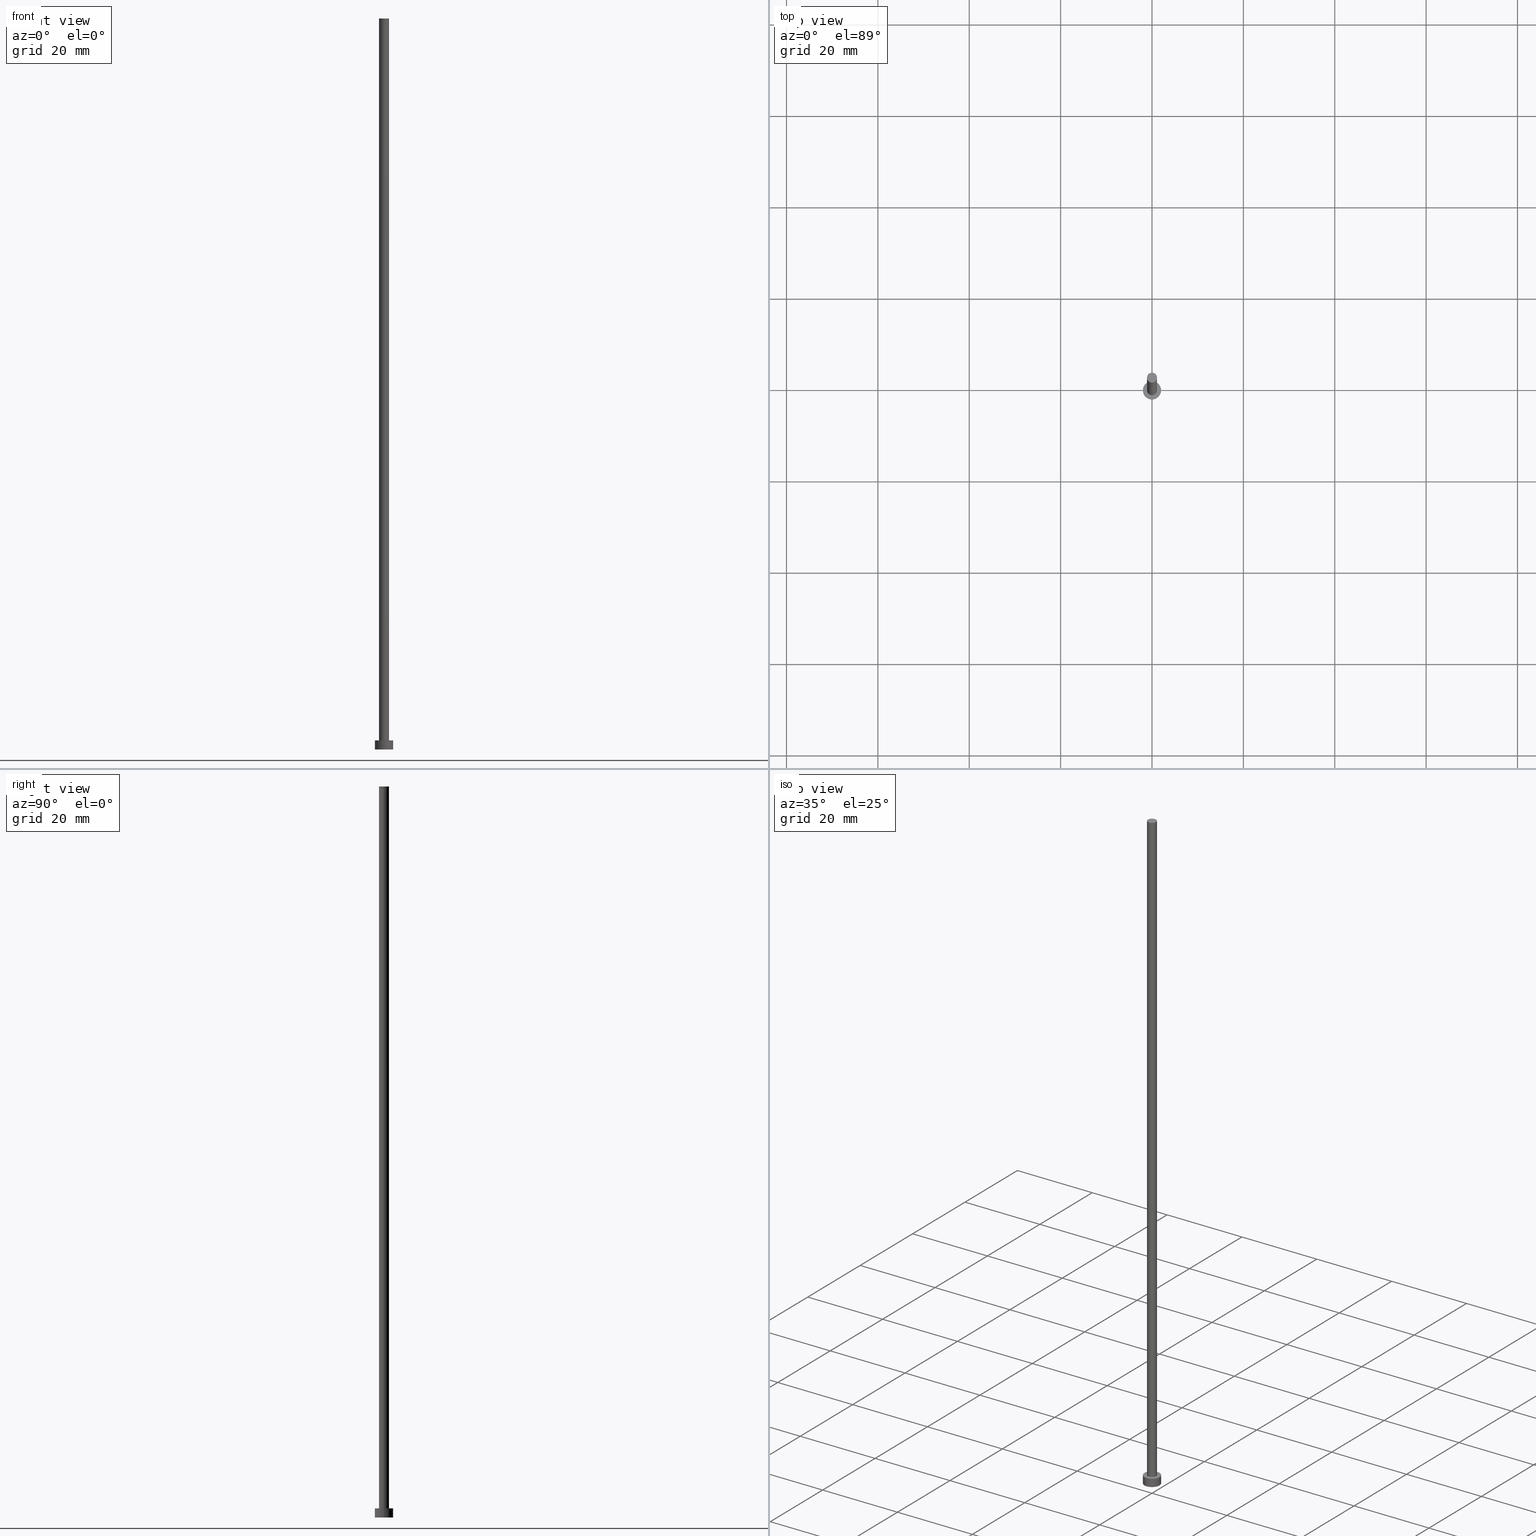
[diagram: canonical four-view strip — front | top / right | iso, engineering-drawing reading convention]
A machine part, canonical four-view strip (front | top / right | iso — engineering-drawing reading convention). The complete STEP part file that produces these views, byte-faithful:
ISO-10303-21;
HEADER;
FILE_DESCRIPTION (( 'STEP AP203' ),
    '1' );
FILE_NAME ('5828.STEP',
    '2023-02-13T16:42:11',
    ( '' ),
    ( '' ),
    'SwSTEP 2.0',
    'SolidWorks 2019',
    '' );
FILE_SCHEMA (( 'CONFIG_CONTROL_DESIGN' ));
ENDSEC;

DATA;
#1 = ORIENTED_EDGE ( 'NONE', *, *, #153, .T. ) ;
#2 = EDGE_CURVE ( 'NONE', #178, #24, #165, .T. ) ;
#3 = DATE_TIME_ROLE ( 'classification_date' ) ;
#4 = ORIENTED_EDGE ( 'NONE', *, *, #163, .T. ) ;
#5 = APPROVAL_STATUS ( 'not_yet_approved' ) ;
#6 = ORIENTED_EDGE ( 'NONE', *, *, #187, .F. ) ;
#7 = PERSON_AND_ORGANIZATION ( #162, #191 ) ;
#8 = PRODUCT_DEFINITION_FORMATION_WITH_SPECIFIED_SOURCE ( 'LIBOVOLN�', '', #54, .NOT_KNOWN. ) ;
#9 = CYLINDRICAL_SURFACE ( 'NONE', #32, 2.000000000000000000 ) ;
#10 = DIRECTION ( 'NONE',  ( 1.000000000000000000, 0.000000000000000000, -0.000000000000000000 ) ) ;
#11 = DIRECTION ( 'NONE',  ( 0.000000000000000000, 0.000000000000000000, 1.000000000000000000 ) ) ;
#12 = CARTESIAN_POINT ( 'NONE',  ( 0.000000000000000000, 0.000000000000000000, 160.0000000000000000 ) ) ;
#13 = ADVANCED_FACE ( 'NONE', ( #105, #125 ), #183, .T. ) ;
#14 = CARTESIAN_POINT ( 'NONE',  ( 0.000000000000000000, 0.000000000000000000, 2.000000000000000000 ) ) ;
#15 = FACE_OUTER_BOUND ( 'NONE', #77, .T. ) ;
#16 =( NAMED_UNIT ( * ) PLANE_ANGLE_UNIT ( ) SI_UNIT ( $, .RADIAN. ) );
#17 = APPROVAL_PERSON_ORGANIZATION ( #175, #73, #74 ) ;
#18 = CARTESIAN_POINT ( 'NONE',  ( 2.000000000000000000, 2.449293598294706414E-16, 2.000000000000000000 ) ) ;
#19 = PERSON_AND_ORGANIZATION ( #162, #191 ) ;
#20 = EDGE_LOOP ( 'NONE', ( #136, #233 ) ) ;
#21 = ADVANCED_FACE ( 'NONE', ( #30 ), #9, .T. ) ;
#22 = ORIENTED_EDGE ( 'NONE', *, *, #2, .F. ) ;
#23 = ADVANCED_FACE ( 'NONE', ( #164 ), #241, .T. ) ;
#24 = VERTEX_POINT ( 'NONE', #104 ) ;
#25 = UNCERTAINTY_MEASURE_WITH_UNIT (LENGTH_MEASURE( 1.000000000000000082E-05 ), #252, 'distance_accuracy_value', 'NONE');
#26 = CARTESIAN_POINT ( 'NONE',  ( 0.000000000000000000, 0.000000000000000000, 160.0000000000000000 ) ) ;
#27 = DIRECTION ( 'NONE',  ( 1.000000000000000000, 0.000000000000000000, 0.000000000000000000 ) ) ;
#28 = EDGE_CURVE ( 'NONE', #255, #41, #177, .T. ) ;
#29 = LOCAL_TIME ( 17, 42, 11.00000000000000000, #40 ) ;
#30 = FACE_OUTER_BOUND ( 'NONE', #236, .T. ) ;
#31 = CARTESIAN_POINT ( 'NONE',  ( -1.100000000000000089, 0.000000000000000000, 2.000000000000000000 ) ) ;
#32 = AXIS2_PLACEMENT_3D ( 'NONE', #188, #83, #218 ) ;
#33 = ORIENTED_EDGE ( 'NONE', *, *, #214, .F. ) ;
#34 = DIRECTION ( 'NONE',  ( -0.000000000000000000, -0.000000000000000000, -1.000000000000000000 ) ) ;
#35 = CARTESIAN_POINT ( 'NONE',  ( 0.000000000000000000, 0.000000000000000000, 0.000000000000000000 ) ) ;
#36 = DIRECTION ( 'NONE',  ( 1.000000000000000000, 0.000000000000000000, 0.000000000000000000 ) ) ;
#37 = PERSON_AND_ORGANIZATION ( #162, #191 ) ;
#38 = ORIENTED_EDGE ( 'NONE', *, *, #39, .T. ) ;
#39 = EDGE_CURVE ( 'NONE', #41, #64, #66, .T. ) ;
#40 = COORDINATED_UNIVERSAL_TIME_OFFSET ( 1, 0, .AHEAD. ) ;
#41 = VERTEX_POINT ( 'NONE', #86 ) ;
#42 = EDGE_LOOP ( 'NONE', ( #133, #212 ) ) ;
#43 = DIRECTION ( 'NONE',  ( 0.000000000000000000, 0.000000000000000000, 1.000000000000000000 ) ) ;
#44 = DIRECTION ( 'NONE',  ( -1.000000000000000000, 0.000000000000000000, 0.000000000000000000 ) ) ;
#45 = CARTESIAN_POINT ( 'NONE',  ( 2.000000000000000000, 2.449293598294706414E-16, 2.000000000000000000 ) ) ;
#46 = CARTESIAN_POINT ( 'NONE',  ( -2.000000000000000000, 0.000000000000000000, 0.000000000000000000 ) ) ;
#47 = AXIS2_PLACEMENT_3D ( 'NONE', #223, #200, #27 ) ;
#48 = DATE_AND_TIME ( #224, #174 ) ;
#49 = CARTESIAN_POINT ( 'NONE',  ( 2.000000000000000000, 2.449293598294706414E-16, 0.000000000000000000 ) ) ;
#50 = APPLICATION_PROTOCOL_DEFINITION ( 'international standard', 'config_control_design', 1994, #135 ) ;
#51 = AXIS2_PLACEMENT_3D ( 'NONE', #167, #69, #245 ) ;
#52 = DIRECTION ( 'NONE',  ( 1.000000000000000000, 0.000000000000000000, 0.000000000000000000 ) ) ;
#53 = LOCAL_TIME ( 17, 42, 11.00000000000000000, #173 ) ;
#54 = PRODUCT ( '5828', '5828', '', ( #170 ) ) ;
#55 = ADVANCED_FACE ( 'NONE', ( #220 ), #61, .T. ) ;
#56 = PERSON_AND_ORGANIZATION_ROLE ( 'classification_officer' ) ;
#57 = AXIS2_PLACEMENT_3D ( 'NONE', #12, #43, #217 ) ;
#58 = CALENDAR_DATE ( 2023, 13, 2 ) ;
#59 = ORIENTED_EDGE ( 'NONE', *, *, #39, .F. ) ;
#60 = PRODUCT_RELATED_PRODUCT_CATEGORY ( 'detail', '', ( #54 ) ) ;
#61 = CYLINDRICAL_SURFACE ( 'NONE', #206, 1.100000000000000089 ) ;
#62 = PERSON_AND_ORGANIZATION_ROLE ( 'design_supplier' ) ;
#63 = AXIS2_PLACEMENT_3D ( 'NONE', #14, #211, #90 ) ;
#64 = VERTEX_POINT ( 'NONE', #31 ) ;
#65 = CALENDAR_DATE ( 2023, 13, 2 ) ;
#66 = LINE ( 'NONE', #148, #158 ) ;
#67 = CARTESIAN_POINT ( 'NONE',  ( 0.000000000000000000, 0.000000000000000000, 2.000000000000000000 ) ) ;
#68 = CC_DESIGN_PERSON_AND_ORGANIZATION_ASSIGNMENT ( #7, #62, ( #8 ) ) ;
#69 = DIRECTION ( 'NONE',  ( 0.000000000000000000, 0.000000000000000000, 1.000000000000000000 ) ) ;
#70 = CARTESIAN_POINT ( 'NONE',  ( 0.000000000000000000, 0.000000000000000000, 2.000000000000000000 ) ) ;
#71 = DATE_AND_TIME ( #229, #53 ) ;
#72 = APPROVAL_PERSON_ORGANIZATION ( #181, #244, #232 ) ;
#73 = APPROVAL ( #159, 'NEUR�EN�' ) ;
#74 = APPROVAL_ROLE ( '' ) ;
#75 = AXIS2_PLACEMENT_3D ( 'NONE', #205, #11, #161 ) ;
#76 = ORIENTED_EDGE ( 'NONE', *, *, #187, .T. ) ;
#77 = EDGE_LOOP ( 'NONE', ( #216, #4, #239, #59 ) ) ;
#78 = CC_DESIGN_DATE_AND_TIME_ASSIGNMENT ( #48, #79, ( #123 ) ) ;
#79 = DATE_TIME_ROLE ( 'creation_date' ) ;
#80 = PERSON_AND_ORGANIZATION_ROLE ( 'creator' ) ;
#81 = PLANE ( 'NONE',  #238 ) ;
#82 = VECTOR ( 'NONE', #225, 1000.000000000000000 ) ;
#83 = DIRECTION ( 'NONE',  ( -0.000000000000000000, -0.000000000000000000, -1.000000000000000000 ) ) ;
#84 = DIRECTION ( 'NONE',  ( -0.000000000000000000, -0.000000000000000000, -1.000000000000000000 ) ) ;
#85 = DIRECTION ( 'NONE',  ( -0.000000000000000000, -0.000000000000000000, -1.000000000000000000 ) ) ;
#86 = CARTESIAN_POINT ( 'NONE',  ( -1.100000000000000089, 0.000000000000000000, 160.0000000000000000 ) ) ;
#87 = CC_DESIGN_PERSON_AND_ORGANIZATION_ASSIGNMENT ( #197, #56, ( #124 ) ) ;
#88 = CC_DESIGN_APPROVAL ( #244, ( #8 ) ) ;
#89 = CARTESIAN_POINT ( 'NONE',  ( 0.000000000000000000, 0.000000000000000000, 160.0000000000000000 ) ) ;
#90 = DIRECTION ( 'NONE',  ( 1.000000000000000000, 0.000000000000000000, 0.000000000000000000 ) ) ;
#91 = ADVANCED_FACE ( 'NONE', ( #121 ), #81, .F. ) ;
#92 = PERSON_AND_ORGANIZATION_ROLE ( 'creator' ) ;
#93 = EDGE_LOOP ( 'NONE', ( #195, #213, #38, #1 ) ) ;
#94 = LOCAL_TIME ( 17, 42, 11.00000000000000000, #240 ) ;
#95 = ORIENTED_EDGE ( 'NONE', *, *, #149, .F. ) ;
#96 = CALENDAR_DATE ( 2023, 13, 2 ) ;
#97 = AXIS2_PLACEMENT_3D ( 'NONE', #67, #117, #10 ) ;
#98 = DIRECTION ( 'NONE',  ( 1.000000000000000000, 0.000000000000000000, -0.000000000000000000 ) ) ;
#99 = DESIGN_CONTEXT ( 'detailed design', #135, 'design' ) ;
#100 = ORIENTED_EDGE ( 'NONE', *, *, #149, .T. ) ;
#101 = CC_DESIGN_APPROVAL ( #73, ( #124 ) ) ;
#102 = DIRECTION ( 'NONE',  ( -0.000000000000000000, -0.000000000000000000, -1.000000000000000000 ) ) ;
#103 = ADVANCED_FACE ( 'NONE', ( #182 ), #118, .T. ) ;
#104 = CARTESIAN_POINT ( 'NONE',  ( -2.000000000000000000, 0.000000000000000000, 2.000000000000000000 ) ) ;
#105 = FACE_BOUND ( 'NONE', #137, .T. ) ;
#106 = DIRECTION ( 'NONE',  ( -0.000000000000000000, -0.000000000000000000, -1.000000000000000000 ) ) ;
#107 = CYLINDRICAL_SURFACE ( 'NONE', #235, 1.100000000000000089 ) ;
#108 = CARTESIAN_POINT ( 'NONE',  ( 0.000000000000000000, 0.000000000000000000, 0.000000000000000000 ) ) ;
#109 = PERSON_AND_ORGANIZATION ( #162, #191 ) ;
#110 = VECTOR ( 'NONE', #85, 1000.000000000000000 ) ;
#111 = DATE_AND_TIME ( #58, #140 ) ;
#112 = DATE_AND_TIME ( #65, #94 ) ;
#113 = CC_DESIGN_DATE_AND_TIME_ASSIGNMENT ( #111, #3, ( #124 ) ) ;
#114 = AXIS2_PLACEMENT_3D ( 'NONE', #154, #247, #127 ) ;
#115 = EDGE_CURVE ( 'NONE', #176, #156, #219, .T. ) ;
#116 = EDGE_LOOP ( 'NONE', ( #215, #179 ) ) ;
#117 = DIRECTION ( 'NONE',  ( 0.000000000000000000, 0.000000000000000000, 1.000000000000000000 ) ) ;
#118 = PLANE ( 'NONE',  #75 ) ;
#119 = SECURITY_CLASSIFICATION_LEVEL ( 'unclassified' ) ;
#120 = APPLICATION_CONTEXT ( 'configuration controlled 3d designs of mechanical parts and assemblies' ) ;
#121 = FACE_OUTER_BOUND ( 'NONE', #116, .T. ) ;
#122 = APPROVAL_PERSON_ORGANIZATION ( #109, #144, #129 ) ;
#123 = PRODUCT_DEFINITION ( 'NEZN�M�', '', #8, #99 ) ;
#124 = SECURITY_CLASSIFICATION ( '', '', #119 ) ;
#125 = FACE_OUTER_BOUND ( 'NONE', #42, .T. ) ;
#126 = LINE ( 'NONE', #207, #82 ) ;
#127 = DIRECTION ( 'NONE',  ( 1.000000000000000000, 0.000000000000000000, 0.000000000000000000 ) ) ;
#128 = CARTESIAN_POINT ( 'NONE',  ( 1.100000000000000089, 1.347111479062088503E-16, 2.000000000000000000 ) ) ;
#129 = APPROVAL_ROLE ( '' ) ;
#130 = DIRECTION ( 'NONE',  ( 1.000000000000000000, 0.000000000000000000, 0.000000000000000000 ) ) ;
#131 = ADVANCED_BREP_SHAPE_REPRESENTATION ( '5828', ( #146, #147 ), #251 ) ;
#132 = DIRECTION ( 'NONE',  ( -1.000000000000000000, 0.000000000000000000, 0.000000000000000000 ) ) ;
#133 = ORIENTED_EDGE ( 'NONE', *, *, #214, .T. ) ;
#134 = CC_DESIGN_PERSON_AND_ORGANIZATION_ASSIGNMENT ( #37, #80, ( #8 ) ) ;
#135 = APPLICATION_CONTEXT ( 'configuration controlled 3d designs of mechanical parts and assemblies' ) ;
#136 = ORIENTED_EDGE ( 'NONE', *, *, #168, .T. ) ;
#137 = EDGE_LOOP ( 'NONE', ( #234, #180 ) ) ;
#138 = AXIS2_PLACEMENT_3D ( 'NONE', #185, #243, #143 ) ;
#139 = DIRECTION ( 'NONE',  ( -1.000000000000000000, 0.000000000000000000, 0.000000000000000000 ) ) ;
#140 = LOCAL_TIME ( 17, 42, 11.00000000000000000, #142 ) ;
#141 = EDGE_LOOP ( 'NONE', ( #95, #33, #76, #169 ) ) ;
#142 = COORDINATED_UNIVERSAL_TIME_OFFSET ( 1, 0, .AHEAD. ) ;
#143 = DIRECTION ( 'NONE',  ( 1.000000000000000000, 0.000000000000000000, 0.000000000000000000 ) ) ;
#144 = APPROVAL ( #192, 'NEUR�EN�' ) ;
#145 = LINE ( 'NONE', #45, #110 ) ;
#146 = MANIFOLD_SOLID_BREP ( 'P�idat vysunut�m3', #228 ) ;
#147 = AXIS2_PLACEMENT_3D ( 'NONE', #35, #250, #130 ) ;
#148 = CARTESIAN_POINT ( 'NONE',  ( -1.100000000000000089, 0.000000000000000000, 160.0000000000000000 ) ) ;
#149 = EDGE_CURVE ( 'NONE', #178, #176, #145, .T. ) ;
#150 = COORDINATED_UNIVERSAL_TIME_OFFSET ( 1, 0, .AHEAD. ) ;
#151 = PERSON_AND_ORGANIZATION ( #162, #191 ) ;
#152 = CIRCLE ( 'NONE', #184, 1.100000000000000089 ) ;
#153 = EDGE_CURVE ( 'NONE', #64, #186, #242, .T. ) ;
#154 = CARTESIAN_POINT ( 'NONE',  ( 0.000000000000000000, 0.000000000000000000, 160.0000000000000000 ) ) ;
#155 = APPROVAL_DATE_TIME ( #112, #73 ) ;
#156 = VERTEX_POINT ( 'NONE', #46 ) ;
#157 = CC_DESIGN_PERSON_AND_ORGANIZATION_ASSIGNMENT ( #19, #92, ( #123 ) ) ;
#158 = VECTOR ( 'NONE', #102, 1000.000000000000000 ) ;
#159 = APPROVAL_STATUS ( 'not_yet_approved' ) ;
#160 = ORIENTED_EDGE ( 'NONE', *, *, #115, .T. ) ;
#161 = DIRECTION ( 'NONE',  ( 1.000000000000000000, 0.000000000000000000, -0.000000000000000000 ) ) ;
#162 = PERSON ( 'NEUR�EN�', 'NEUR�EN�', 'NEUR�EN�', ('NEUR�EN�'), ('NEUR�EN�'), ('NEUR�EN�') ) ;
#163 = EDGE_CURVE ( 'NONE', #255, #186, #126, .T. ) ;
#164 = FACE_OUTER_BOUND ( 'NONE', #141, .T. ) ;
#165 = CIRCLE ( 'NONE', #138, 2.000000000000000000 ) ;
#166 = DIRECTION ( 'NONE',  ( 0.000000000000000000, 0.000000000000000000, 1.000000000000000000 ) ) ;
#167 = CARTESIAN_POINT ( 'NONE',  ( 0.000000000000000000, 0.000000000000000000, 2.000000000000000000 ) ) ;
#168 = EDGE_CURVE ( 'NONE', #41, #255, #226, .T. ) ;
#169 = ORIENTED_EDGE ( 'NONE', *, *, #196, .T. ) ;
#170 = MECHANICAL_CONTEXT ( 'NONE', #120, 'mechanical' ) ;
#171 =( NAMED_UNIT ( * ) SI_UNIT ( $, .STERADIAN. ) SOLID_ANGLE_UNIT ( ) );
#172 = EDGE_CURVE ( 'NONE', #186, #64, #152, .T. ) ;
#173 = COORDINATED_UNIVERSAL_TIME_OFFSET ( 1, 0, .AHEAD. ) ;
#174 = LOCAL_TIME ( 17, 42, 11.00000000000000000, #150 ) ;
#175 = PERSON_AND_ORGANIZATION ( #162, #191 ) ;
#176 = VERTEX_POINT ( 'NONE', #49 ) ;
#177 = CIRCLE ( 'NONE', #57, 1.100000000000000089 ) ;
#178 = VERTEX_POINT ( 'NONE', #18 ) ;
#179 = ORIENTED_EDGE ( 'NONE', *, *, #115, .F. ) ;
#180 = ORIENTED_EDGE ( 'NONE', *, *, #172, .F. ) ;
#181 = PERSON_AND_ORGANIZATION ( #162, #191 ) ;
#182 = FACE_OUTER_BOUND ( 'NONE', #20, .T. ) ;
#183 = PLANE ( 'NONE',  #97 ) ;
#184 = AXIS2_PLACEMENT_3D ( 'NONE', #70, #210, #52 ) ;
#185 = CARTESIAN_POINT ( 'NONE',  ( 0.000000000000000000, 0.000000000000000000, 2.000000000000000000 ) ) ;
#186 = VERTEX_POINT ( 'NONE', #128 ) ;
#187 = EDGE_CURVE ( 'NONE', #24, #156, #208, .T. ) ;
#188 = CARTESIAN_POINT ( 'NONE',  ( 0.000000000000000000, 0.000000000000000000, 2.000000000000000000 ) ) ;
#189 = DIRECTION ( 'NONE',  ( 0.000000000000000000, 0.000000000000000000, 1.000000000000000000 ) ) ;
#190 = CARTESIAN_POINT ( 'NONE',  ( 1.100000000000000089, 1.347111479062088503E-16, 160.0000000000000000 ) ) ;
#191 = ORGANIZATION ( 'NEUR�EN�', 'NEUR�EN�', '' ) ;
#192 = APPROVAL_STATUS ( 'not_yet_approved' ) ;
#193 = APPROVAL_DATE_TIME ( #71, #144 ) ;
#194 = ADVANCED_FACE ( 'NONE', ( #15 ), #107, .T. ) ;
#195 = ORIENTED_EDGE ( 'NONE', *, *, #163, .F. ) ;
#196 = EDGE_CURVE ( 'NONE', #156, #176, #237, .T. ) ;
#197 = PERSON_AND_ORGANIZATION ( #162, #191 ) ;
#198 = CARTESIAN_POINT ( 'NONE',  ( 0.000000000000000000, 0.000000000000000000, 2.000000000000000000 ) ) ;
#199 = DATE_AND_TIME ( #96, #29 ) ;
#200 = DIRECTION ( 'NONE',  ( 0.000000000000000000, 0.000000000000000000, 1.000000000000000000 ) ) ;
#201 = CARTESIAN_POINT ( 'NONE',  ( 0.000000000000000000, 0.000000000000000000, 0.000000000000000000 ) ) ;
#202 = CIRCLE ( 'NONE', #63, 2.000000000000000000 ) ;
#203 = VECTOR ( 'NONE', #106, 1000.000000000000000 ) ;
#204 = CC_DESIGN_PERSON_AND_ORGANIZATION_ASSIGNMENT ( #151, #227, ( #54 ) ) ;
#205 = CARTESIAN_POINT ( 'NONE',  ( 0.000000000000000000, 0.000000000000000000, 160.0000000000000000 ) ) ;
#206 = AXIS2_PLACEMENT_3D ( 'NONE', #26, #221, #44 ) ;
#207 = CARTESIAN_POINT ( 'NONE',  ( 1.100000000000000089, 1.347111479062088503E-16, 160.0000000000000000 ) ) ;
#208 = LINE ( 'NONE', #209, #203 ) ;
#209 = CARTESIAN_POINT ( 'NONE',  ( -2.000000000000000000, 0.000000000000000000, 2.000000000000000000 ) ) ;
#210 = DIRECTION ( 'NONE',  ( 0.000000000000000000, 0.000000000000000000, 1.000000000000000000 ) ) ;
#211 = DIRECTION ( 'NONE',  ( 0.000000000000000000, 0.000000000000000000, 1.000000000000000000 ) ) ;
#212 = ORIENTED_EDGE ( 'NONE', *, *, #2, .T. ) ;
#213 = ORIENTED_EDGE ( 'NONE', *, *, #168, .F. ) ;
#214 = EDGE_CURVE ( 'NONE', #24, #178, #202, .T. ) ;
#215 = ORIENTED_EDGE ( 'NONE', *, *, #196, .F. ) ;
#216 = ORIENTED_EDGE ( 'NONE', *, *, #28, .F. ) ;
#217 = DIRECTION ( 'NONE',  ( 1.000000000000000000, 0.000000000000000000, 0.000000000000000000 ) ) ;
#218 = DIRECTION ( 'NONE',  ( -1.000000000000000000, 0.000000000000000000, 0.000000000000000000 ) ) ;
#219 = CIRCLE ( 'NONE', #47, 2.000000000000000000 ) ;
#220 = FACE_OUTER_BOUND ( 'NONE', #93, .T. ) ;
#221 = DIRECTION ( 'NONE',  ( -0.000000000000000000, -0.000000000000000000, -1.000000000000000000 ) ) ;
#222 = CC_DESIGN_SECURITY_CLASSIFICATION ( #124, ( #8 ) ) ;
#223 = CARTESIAN_POINT ( 'NONE',  ( 0.000000000000000000, 0.000000000000000000, 0.000000000000000000 ) ) ;
#224 = CALENDAR_DATE ( 2023, 13, 2 ) ;
#225 = DIRECTION ( 'NONE',  ( -0.000000000000000000, -0.000000000000000000, -1.000000000000000000 ) ) ;
#226 = CIRCLE ( 'NONE', #114, 1.100000000000000089 ) ;
#227 = PERSON_AND_ORGANIZATION_ROLE ( 'design_owner' ) ;
#228 = CLOSED_SHELL ( 'NONE', ( #194, #21, #23, #13, #91, #55, #103 ) ) ;
#229 = CALENDAR_DATE ( 2023, 13, 2 ) ;
#230 = CC_DESIGN_APPROVAL ( #144, ( #123 ) ) ;
#231 = APPROVAL_DATE_TIME ( #199, #244 ) ;
#232 = APPROVAL_ROLE ( '' ) ;
#233 = ORIENTED_EDGE ( 'NONE', *, *, #28, .T. ) ;
#234 = ORIENTED_EDGE ( 'NONE', *, *, #153, .F. ) ;
#235 = AXIS2_PLACEMENT_3D ( 'NONE', #89, #34, #132 ) ;
#236 = EDGE_LOOP ( 'NONE', ( #22, #100, #160, #6 ) ) ;
#237 = CIRCLE ( 'NONE', #246, 2.000000000000000000 ) ;
#238 = AXIS2_PLACEMENT_3D ( 'NONE', #201, #166, #98 ) ;
#239 = ORIENTED_EDGE ( 'NONE', *, *, #172, .T. ) ;
#240 = COORDINATED_UNIVERSAL_TIME_OFFSET ( 1, 0, .AHEAD. ) ;
#241 = CYLINDRICAL_SURFACE ( 'NONE', #248, 2.000000000000000000 ) ;
#242 = CIRCLE ( 'NONE', #51, 1.100000000000000089 ) ;
#243 = DIRECTION ( 'NONE',  ( 0.000000000000000000, 0.000000000000000000, 1.000000000000000000 ) ) ;
#244 = APPROVAL ( #5, 'NEUR�EN�' ) ;
#245 = DIRECTION ( 'NONE',  ( 1.000000000000000000, 0.000000000000000000, 0.000000000000000000 ) ) ;
#246 = AXIS2_PLACEMENT_3D ( 'NONE', #108, #189, #36 ) ;
#247 = DIRECTION ( 'NONE',  ( 0.000000000000000000, 0.000000000000000000, 1.000000000000000000 ) ) ;
#248 = AXIS2_PLACEMENT_3D ( 'NONE', #198, #84, #139 ) ;
#249 = APPLICATION_PROTOCOL_DEFINITION ( 'international standard', 'config_control_design', 1994, #120 ) ;
#250 = DIRECTION ( 'NONE',  ( 0.000000000000000000, 0.000000000000000000, 1.000000000000000000 ) ) ;
#251 =( GEOMETRIC_REPRESENTATION_CONTEXT ( 3 ) GLOBAL_UNCERTAINTY_ASSIGNED_CONTEXT ( ( #25 ) ) GLOBAL_UNIT_ASSIGNED_CONTEXT ( ( #252, #16, #171 ) ) REPRESENTATION_CONTEXT ( 'NONE', 'WORKASPACE' ) );
#252 =( LENGTH_UNIT ( ) NAMED_UNIT ( * ) SI_UNIT ( .MILLI., .METRE. ) );
#253 = PRODUCT_DEFINITION_SHAPE ( 'NONE', 'NONE',  #123 ) ;
#254 = SHAPE_DEFINITION_REPRESENTATION ( #253, #131 ) ;
#255 = VERTEX_POINT ( 'NONE', #190 ) ;
ENDSEC;
END-ISO-10303-21;
